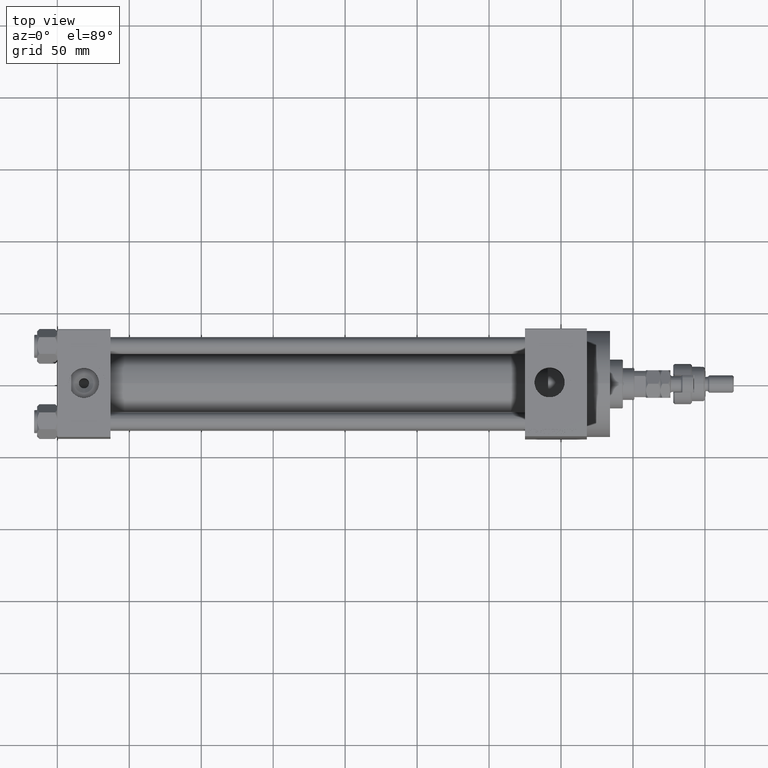
[diagram: clean part render]
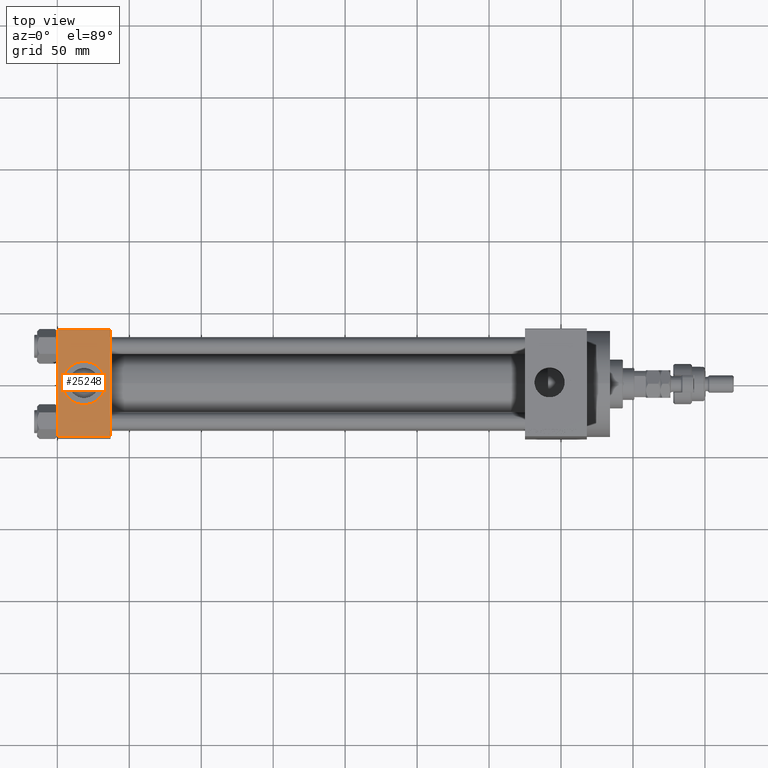
[diagram: same view with one face highlighted and labeled with its STEP entity id]
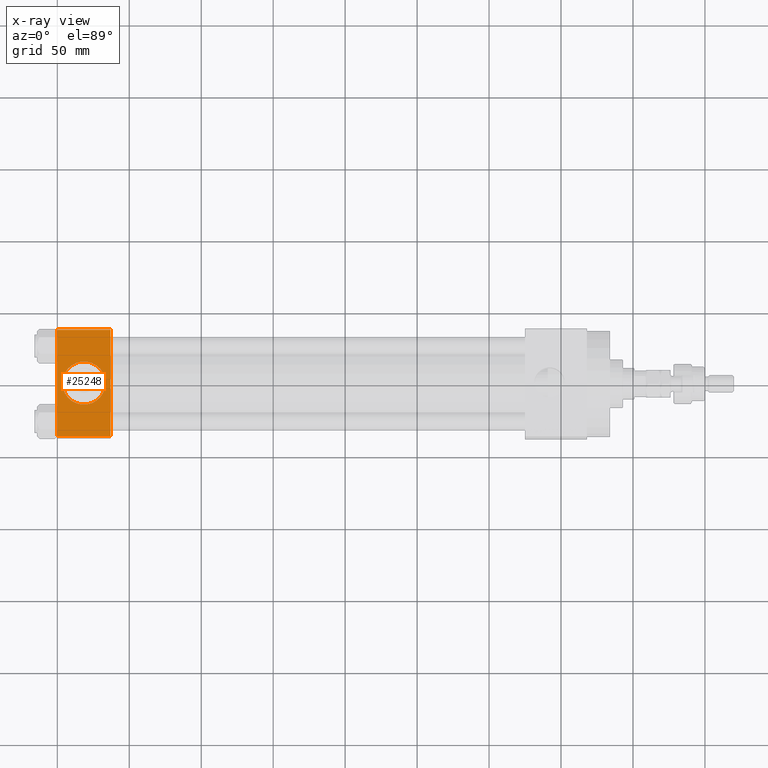
[diagram: x-ray of the same camera — body ghosted, the highlighted face saturated]
A machine part, top view. The second image highlights one B-rep face of the part: STEP entity #25248.
The next image is the same camera in x-ray: the body ghosted, the highlighted face saturated — about 0% of this face is hidden behind the body in this view.
In plain terms, the highlighted planar face has unit normal (0, 0, -1).
Its self-contained STEP definition (entity closure, byte-faithful):
#664 = VERTEX_POINT ( 'NONE', #30482 ) ;
#746 = CARTESIAN_POINT ( 'NONE',  ( 0.000000000000000000, 37.49999999999999289, 37.50000000000000000 ) ) ;
#1699 = FACE_BOUND ( 'NONE', #35594, .T. ) ;
#5244 = PLANE ( 'NONE',  #36232 ) ;
#5461 = VERTEX_POINT ( 'NONE', #11477 ) ;
#9271 = DIRECTION ( 'NONE',  ( 0.000000000000000000, 1.000000000000000000, 9.251858538542971581E-17 ) ) ;
#9615 = ORIENTED_EDGE ( 'NONE', *, *, #37355, .T. ) ;
#10522 = AXIS2_PLACEMENT_3D ( 'NONE', #35109, #35612, #27017 ) ;
#11089 = CARTESIAN_POINT ( 'NONE',  ( 37.00000000000000000, 37.49999999999999289, 37.50000000000000000 ) ) ;
#11444 = ORIENTED_EDGE ( 'NONE', *, *, #25881, .F. ) ;
#11473 = VERTEX_POINT ( 'NONE', #48306 ) ;
#11477 = CARTESIAN_POINT ( 'NONE',  ( 0.000000000000000000, 36.99999999999999289, 37.50000000000000000 ) ) ;
#12473 = EDGE_LOOP ( 'NONE', ( #9615, #43286, #42011, #16453 ) ) ;
#13935 = CARTESIAN_POINT ( 'NONE',  ( 33.50000000000000000, -5.204170427930421283E-15, 37.50000000000000000 ) ) ;
#14057 = CARTESIAN_POINT ( 'NONE',  ( 37.00000000000000000, 37.49999999999999289, 37.50000000000000000 ) ) ;
#15398 = VECTOR ( 'NONE', #47160, 1000.000000000000000 ) ;
#16055 = CARTESIAN_POINT ( 'NONE',  ( 37.00000000000000000, -37.00000000000000711, 37.49999999999999289 ) ) ;
#16273 = ORIENTED_EDGE ( 'NONE', *, *, #28192, .F. ) ;
#16453 = ORIENTED_EDGE ( 'NONE', *, *, #29671, .T. ) ;
#16649 = DIRECTION ( 'NONE',  ( 0.000000000000000000, -1.000000000000000000, -9.251858538542971581E-17 ) ) ;
#16854 = DIRECTION ( 'NONE',  ( 0.000000000000000000, 9.251858538542971581E-17, -1.000000000000000000 ) ) ;
#17715 = AXIS2_PLACEMENT_3D ( 'NONE', #37853, #19119, #38110 ) ;
#18210 = LINE ( 'NONE', #37440, #15398 ) ;
#19119 = DIRECTION ( 'NONE',  ( 0.000000000000000000, 0.000000000000000000, 1.000000000000000000 ) ) ;
#19594 = DIRECTION ( 'NONE',  ( 1.000000000000000000, 0.000000000000000000, 0.000000000000000000 ) ) ;
#21394 = FACE_OUTER_BOUND ( 'NONE', #12473, .T. ) ;
#22535 = VERTEX_POINT ( 'NONE', #33685 ) ;
#24482 = LINE ( 'NONE', #746, #48706 ) ;
#25248 = ADVANCED_FACE ( 'NONE', ( #1699, #21394 ), #5244, .F. ) ;
#25881 = EDGE_CURVE ( 'NONE', #34469, #22535, #34641, .T. ) ;
#26777 = LINE ( 'NONE', #11089, #29701 ) ;
#27017 = DIRECTION ( 'NONE',  ( 1.000000000000000000, 0.000000000000000000, 0.000000000000000000 ) ) ;
#28192 = EDGE_CURVE ( 'NONE', #22535, #34469, #37965, .T. ) ;
#29671 = EDGE_CURVE ( 'NONE', #664, #5461, #18210, .T. ) ;
#29701 = VECTOR ( 'NONE', #42210, 1000.000000000000000 ) ;
#30187 = CARTESIAN_POINT ( 'NONE',  ( 0.000000000000000000, -37.00000000000000711, 37.49999999999999289 ) ) ;
#30482 = CARTESIAN_POINT ( 'NONE',  ( 37.00000000000000000, 36.99999999999999289, 37.50000000000000000 ) ) ;
#30982 = LINE ( 'NONE', #16055, #47020 ) ;
#32563 = EDGE_CURVE ( 'NONE', #39690, #11473, #30982, .T. ) ;
#33685 = CARTESIAN_POINT ( 'NONE',  ( 3.499999999999997780, -3.367200229209391300E-15, 37.50000000000000000 ) ) ;
#34469 = VERTEX_POINT ( 'NONE', #13935 ) ;
#34641 = CIRCLE ( 'NONE', #17715, 15.00000000000000355 ) ;
#35109 = CARTESIAN_POINT ( 'NONE',  ( 18.50000000000000000, -5.204170427930421283E-15, 37.50000000000000000 ) ) ;
#35594 = EDGE_LOOP ( 'NONE', ( #11444, #16273 ) ) ;
#35612 = DIRECTION ( 'NONE',  ( 0.000000000000000000, 0.000000000000000000, 1.000000000000000000 ) ) ;
#36232 = AXIS2_PLACEMENT_3D ( 'NONE', #14057, #16854, #9271 ) ;
#37355 = EDGE_CURVE ( 'NONE', #5461, #39690, #24482, .T. ) ;
#37440 = CARTESIAN_POINT ( 'NONE',  ( 0.000000000000000000, 36.99999999999999289, 37.50000000000000000 ) ) ;
#37853 = CARTESIAN_POINT ( 'NONE',  ( 18.50000000000000000, -5.204170427930421283E-15, 37.50000000000000000 ) ) ;
#37965 = CIRCLE ( 'NONE', #10522, 15.00000000000000355 ) ;
#38110 = DIRECTION ( 'NONE',  ( 1.000000000000000000, 0.000000000000000000, 0.000000000000000000 ) ) ;
#39690 = VERTEX_POINT ( 'NONE', #30187 ) ;
#40937 = EDGE_CURVE ( 'NONE', #664, #11473, #26777, .T. ) ;
#42011 = ORIENTED_EDGE ( 'NONE', *, *, #40937, .F. ) ;
#42210 = DIRECTION ( 'NONE',  ( 0.000000000000000000, -1.000000000000000000, -9.251858538542971581E-17 ) ) ;
#43286 = ORIENTED_EDGE ( 'NONE', *, *, #32563, .T. ) ;
#47020 = VECTOR ( 'NONE', #19594, 1000.000000000000000 ) ;
#47160 = DIRECTION ( 'NONE',  ( -1.000000000000000000, 0.000000000000000000, 0.000000000000000000 ) ) ;
#48306 = CARTESIAN_POINT ( 'NONE',  ( 37.00000000000000000, -37.00000000000000711, 37.49999999999999289 ) ) ;
#48706 = VECTOR ( 'NONE', #16649, 1000.000000000000000 ) ;